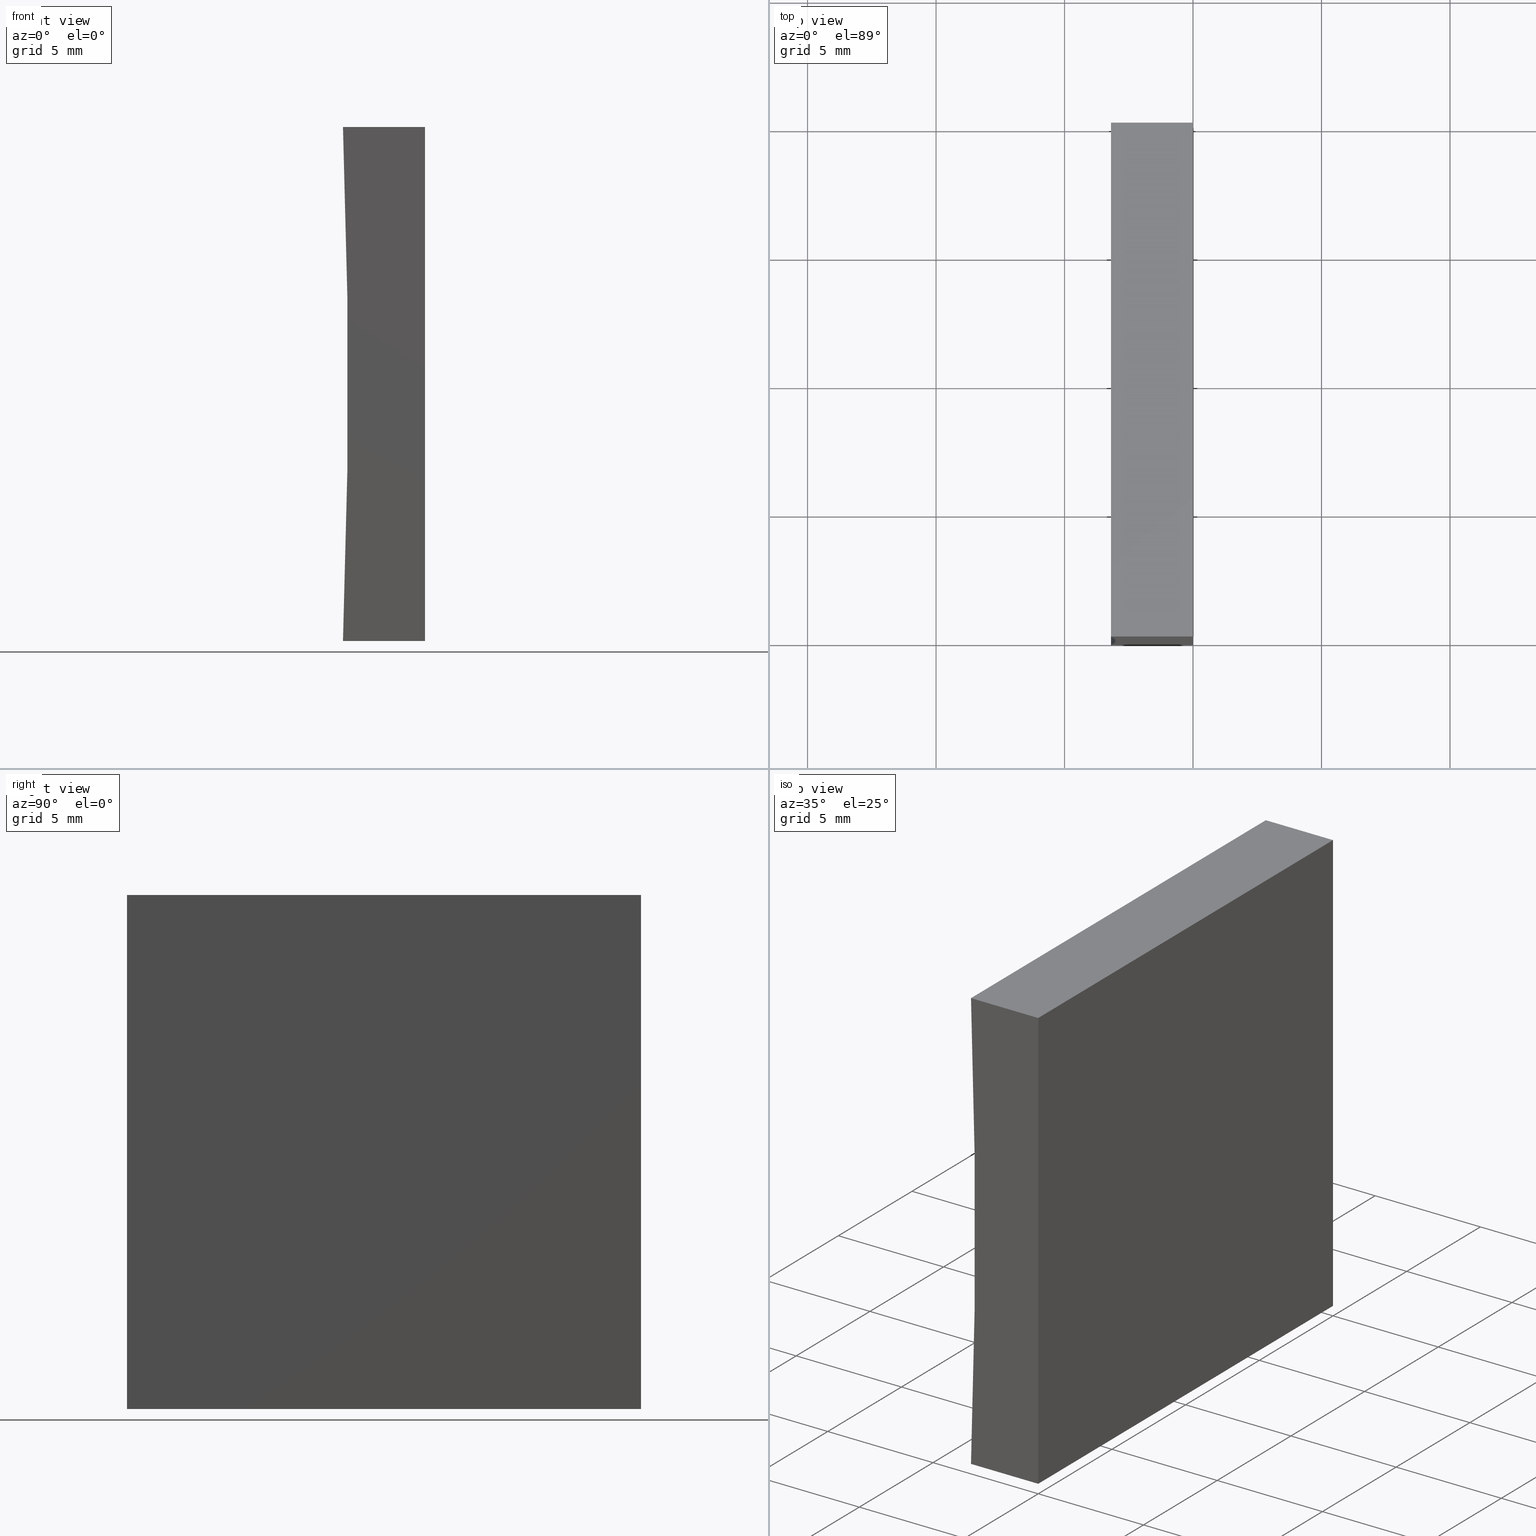
[diagram: canonical four-view strip — front | top / right | iso, engineering-drawing reading convention]
A machine part, canonical four-view strip (front | top / right | iso — engineering-drawing reading convention). The complete STEP part file that produces these views, byte-faithful:
ISO-10303-21;
HEADER;
FILE_DESCRIPTION (( 'STEP AP214' ),
    '1' );
FILE_NAME ('155352.STEP',
    '2019-06-28T06:16:52',
    ( 'user' ),
    ( '΢���й�' ),
    'SwSTEP 2.0',
    'SolidWorks 2016',
    '' );
FILE_SCHEMA (( 'AUTOMOTIVE_DESIGN' ));
ENDSEC;

DATA;
#1 = FACE_OUTER_BOUND ( 'NONE', #127, .T. ) ;
#2 = COLOUR_RGB ( '',1.000000000000000000, 1.000000000000000000, 1.000000000000000000 ) ;
#3 =( GEOMETRIC_REPRESENTATION_CONTEXT ( 3 ) GLOBAL_UNCERTAINTY_ASSIGNED_CONTEXT ( ( #125 ) ) GLOBAL_UNIT_ASSIGNED_CONTEXT ( ( #175, #30, #130 ) ) REPRESENTATION_CONTEXT ( 'NONE', 'WORKASPACE' ) );
#4 = APPLICATION_PROTOCOL_DEFINITION ( 'draft international standard', 'automotive_design', 1998, #120 ) ;
#5 = CARTESIAN_POINT ( 'NONE',  ( 0.0000000000000000000, 0.0000000000000000000, 0.0000000000000000000 ) ) ;
#6 = SURFACE_STYLE_USAGE ( .BOTH. , #194 ) ;
#7 = CARTESIAN_POINT ( 'NONE',  ( -261.5000000000000000, 20.00000000000000000, 10.00000000000003200 ) ) ;
#8 = DIRECTION ( 'NONE',  ( 0.0000000000000000000, -0.0000000000000000000, 1.000000000000000000 ) ) ;
#9 = DIRECTION ( 'NONE',  ( -6.123233995736766000E-017, -0.0000000000000000000, -1.000000000000000000 ) ) ;
#10 = CARTESIAN_POINT ( 'NONE',  ( -3.193496016844377100, 20.00000000000000000, -2.081668171172168500E-014 ) ) ;
#11 = DIRECTION ( 'NONE',  ( -1.086410295692777000E-015, 0.0000000000000000000, 1.000000000000000000 ) ) ;
#12 = DIRECTION ( 'NONE',  ( 0.0000000000000000000, 0.0000000000000000000, 1.000000000000000000 ) ) ;
#13 = APPLICATION_CONTEXT ( 'automotive_design' ) ;
#14 = FILL_AREA_STYLE_COLOUR ( '', #151 ) ;
#15 = EDGE_LOOP ( 'NONE', ( #170, #60, #119, #82 ) ) ;
#16 = VECTOR ( 'NONE', #126, 1000.000000000000000 ) ;
#17 = CIRCLE ( 'NONE', #24, 258.5000000000000000 ) ;
#18 = ORIENTED_EDGE ( 'NONE', *, *, #147, .F. ) ;
#19 =( NAMED_UNIT ( * ) PLANE_ANGLE_UNIT ( ) SI_UNIT ( $, .RADIAN. ) );
#20 = ORIENTED_EDGE ( 'NONE', *, *, #45, .T. ) ;
#21 = DIRECTION ( 'NONE',  ( 1.000000000000000000, 0.0000000000000000000, 0.0000000000000000000 ) ) ;
#22 = FILL_AREA_STYLE_COLOUR ( '', #2 ) ;
#23 = VERTEX_POINT ( 'NONE', #76 ) ;
#24 = AXIS2_PLACEMENT_3D ( 'NONE', #7, #142, #65 ) ;
#25 = DIRECTION ( 'NONE',  ( 0.0000000000000000000, 1.000000000000000000, 0.0000000000000000000 ) ) ;
#26 = STYLED_ITEM ( 'NONE', ( #32 ), #138 ) ;
#27 = ORIENTED_EDGE ( 'NONE', *, *, #147, .T. ) ;
#28 = AXIS2_PLACEMENT_3D ( 'NONE', #153, #43, #188 ) ;
#29 = CARTESIAN_POINT ( 'NONE',  ( -3.193496016844377100, 0.0000000000000000000, -2.081668171172168500E-014 ) ) ;
#30 =( NAMED_UNIT ( * ) PLANE_ANGLE_UNIT ( ) SI_UNIT ( $, .RADIAN. ) );
#31 = AXIS2_PLACEMENT_3D ( 'NONE', #38, #96, #72 ) ;
#32 = PRESENTATION_STYLE_ASSIGNMENT (( #48 ) ) ;
#33 = EDGE_LOOP ( 'NONE', ( #99, #36, #83, #108 ) ) ;
#34 = VECTOR ( 'NONE', #164, 1000.000000000000000 ) ;
#35 = ADVANCED_BREP_SHAPE_REPRESENTATION ( '155352', ( #138, #201 ), #3 ) ;
#36 = ORIENTED_EDGE ( 'NONE', *, *, #180, .F. ) ;
#37 = AXIS2_PLACEMENT_3D ( 'NONE', #103, #11, #187 ) ;
#38 = CARTESIAN_POINT ( 'NONE',  ( -261.5000000000000000, 20.00000000000000000, 10.00000000000003200 ) ) ;
#39 = PLANE ( 'NONE',  #93 ) ;
#40 = FACE_OUTER_BOUND ( 'NONE', #192, .T. ) ;
#41 = ORIENTED_EDGE ( 'NONE', *, *, #69, .T. ) ;
#42 = DIRECTION ( 'NONE',  ( -0.0000000000000000000, -1.000000000000000000, -0.0000000000000000000 ) ) ;
#43 = DIRECTION ( 'NONE',  ( -1.000000000000000000, 0.0000000000000000000, 6.123233995736766000E-017 ) ) ;
#44 = EDGE_CURVE ( 'NONE', #137, #67, #81, .T. ) ;
#45 = EDGE_CURVE ( 'NONE', #88, #47, #177, .T. ) ;
#46 = PLANE ( 'NONE',  #68 ) ;
#47 = VERTEX_POINT ( 'NONE', #70 ) ;
#48 = SURFACE_STYLE_USAGE ( .BOTH. , #64 ) ;
#49 = CARTESIAN_POINT ( 'NONE',  ( 0.0000000000000000000, 20.00000000000000000, 0.0000000000000000000 ) ) ;
#50 = VECTOR ( 'NONE', #154, 1000.000000000000000 ) ;
#51 = CYLINDRICAL_SURFACE ( 'NONE', #31, 258.5000000000000000 ) ;
#52 = EDGE_CURVE ( 'NONE', #150, #88, #17, .T. ) ;
#53 = ADVANCED_FACE ( 'NONE', ( #146 ), #143, .F. ) ;
#54 = CLOSED_SHELL ( 'NONE', ( #53, #190, #145, #124, #166, #84 ) ) ;
#55 = LINE ( 'NONE', #49, #113 ) ;
#56 = ORIENTED_EDGE ( 'NONE', *, *, #44, .F. ) ;
#57 =( NAMED_UNIT ( * ) SI_UNIT ( $, .STERADIAN. ) SOLID_ANGLE_UNIT ( ) );
#58 =( LENGTH_UNIT ( ) NAMED_UNIT ( * ) SI_UNIT ( .MILLI., .METRE. ) );
#59 = UNCERTAINTY_MEASURE_WITH_UNIT (LENGTH_MEASURE( 1.000000000000000100E-005 ), #171, 'distance_accuracy_value', 'NONE');
#60 = ORIENTED_EDGE ( 'NONE', *, *, #45, .F. ) ;
#61 = CARTESIAN_POINT ( 'NONE',  ( -3.193496016844382900, 20.00000000000000000, 20.00000000000000400 ) ) ;
#62 = DIRECTION ( 'NONE',  ( 1.000000000000000000, -0.0000000000000000000, -1.086410295692777400E-015 ) ) ;
#63 = FILL_AREA_STYLE ('',( #14 ) ) ;
#64 = SURFACE_SIDE_STYLE ('',( #89 ) ) ;
#65 = DIRECTION ( 'NONE',  ( 0.0000000000000000000, 0.0000000000000000000, 1.000000000000000000 ) ) ;
#66 = CARTESIAN_POINT ( 'NONE',  ( 1.224646799147353300E-015, 20.00000000000000000, 20.00000000000000000 ) ) ;
#67 = VERTEX_POINT ( 'NONE', #29 ) ;
#68 = AXIS2_PLACEMENT_3D ( 'NONE', #111, #25, #168 ) ;
#69 = EDGE_CURVE ( 'NONE', #167, #150, #123, .T. ) ;
#70 = CARTESIAN_POINT ( 'NONE',  ( -3.193496016844382900, 0.0000000000000000000, 20.00000000000000400 ) ) ;
#71 = ORIENTED_EDGE ( 'NONE', *, *, #80, .T. ) ;
#72 = DIRECTION ( 'NONE',  ( 0.0000000000000000000, 0.0000000000000000000, -1.000000000000000000 ) ) ;
#73 = LINE ( 'NONE', #87, #106 ) ;
#74 = PRODUCT_CONTEXT ( 'NONE', #120, 'mechanical' ) ;
#75 = PRESENTATION_LAYER_ASSIGNMENT (  '', '', ( #26 ) ) ;
#76 = CARTESIAN_POINT ( 'NONE',  ( 1.224646799147353300E-015, 20.00000000000000000, 20.00000000000000000 ) ) ;
#77 = ORIENTED_EDGE ( 'NONE', *, *, #136, .F. ) ;
#78 = CARTESIAN_POINT ( 'NONE',  ( 1.224646799147353300E-015, 0.0000000000000000000, 20.00000000000000000 ) ) ;
#79 = PRESENTATION_LAYER_ASSIGNMENT (  '', '', ( #109 ) ) ;
#80 = EDGE_CURVE ( 'NONE', #23, #186, #73, .T. ) ;
#81 = LINE ( 'NONE', #5, #112 ) ;
#82 = ORIENTED_EDGE ( 'NONE', *, *, #180, .T. ) ;
#83 = ORIENTED_EDGE ( 'NONE', *, *, #69, .F. ) ;
#84 = ADVANCED_FACE ( 'NONE', ( #1 ), #86, .F. ) ;
#85 = DIRECTION ( 'NONE',  ( -0.0000000000000000000, -1.000000000000000000, -0.0000000000000000000 ) ) ;
#86 = PLANE ( 'NONE',  #158 ) ;
#87 = CARTESIAN_POINT ( 'NONE',  ( 1.224646799147353300E-015, 20.00000000000000000, 20.00000000000000000 ) ) ;
#88 = VERTEX_POINT ( 'NONE', #179 ) ;
#89 = SURFACE_STYLE_FILL_AREA ( #63 ) ;
#90 = CIRCLE ( 'NONE', #105, 258.5000000000000000 ) ;
#91 =( NAMED_UNIT ( * ) PLANE_ANGLE_UNIT ( ) SI_UNIT ( $, .RADIAN. ) );
#92 = SURFACE_STYLE_FILL_AREA ( #174 ) ;
#93 = AXIS2_PLACEMENT_3D ( 'NONE', #118, #139, #135 ) ;
#94 = PRODUCT_DEFINITION_SHAPE ( 'NONE', 'NONE',  #159 ) ;
#95 = CARTESIAN_POINT ( 'NONE',  ( 0.0000000000000000000, 20.00000000000000000, 0.0000000000000000000 ) ) ;
#96 = DIRECTION ( 'NONE',  ( -0.0000000000000000000, -1.000000000000000000, -0.0000000000000000000 ) ) ;
#97 = LINE ( 'NONE', #196, #16 ) ;
#98 = DIRECTION ( 'NONE',  ( 0.0000000000000000000, 1.000000000000000000, 0.0000000000000000000 ) ) ;
#99 = ORIENTED_EDGE ( 'NONE', *, *, #44, .T. ) ;
#100 = DIRECTION ( 'NONE',  ( -0.0000000000000000000, -1.000000000000000000, -0.0000000000000000000 ) ) ;
#101 = VECTOR ( 'NONE', #181, 1000.000000000000000 ) ;
#102 = EDGE_LOOP ( 'NONE', ( #148, #128, #18, #20 ) ) ;
#103 = CARTESIAN_POINT ( 'NONE',  ( 0.0000000000000000000, 20.00000000000000000, 0.0000000000000000000 ) ) ;
#104 = ORIENTED_EDGE ( 'NONE', *, *, #204, .T. ) ;
#105 = AXIS2_PLACEMENT_3D ( 'NONE', #200, #85, #12 ) ;
#106 = VECTOR ( 'NONE', #42, 1000.000000000000000 ) ;
#107 = VECTOR ( 'NONE', #62, 1000.000000000000000 ) ;
#108 = ORIENTED_EDGE ( 'NONE', *, *, #136, .T. ) ;
#109 = STYLED_ITEM ( 'NONE', ( #165 ), #35 ) ;
#110 = UNCERTAINTY_MEASURE_WITH_UNIT (LENGTH_MEASURE( 1.000000000000000100E-005 ), #58, 'distance_accuracy_value', 'NONE');
#111 = CARTESIAN_POINT ( 'NONE',  ( -261.5000000000000000, 20.00000000000000000, 10.00000000000003200 ) ) ;
#112 = VECTOR ( 'NONE', #132, 1000.000000000000000 ) ;
#113 = VECTOR ( 'NONE', #9, 1000.000000000000000 ) ;
#114 = ORIENTED_EDGE ( 'NONE', *, *, #163, .F. ) ;
#115 = CARTESIAN_POINT ( 'NONE',  ( -261.5000000000000000, 0.0000000000000000000, 10.00000000000003200 ) ) ;
#116 = DIRECTION ( 'NONE',  ( 0.0000000000000000000, 0.0000000000000000000, 1.000000000000000000 ) ) ;
#117 = LINE ( 'NONE', #160, #34 ) ;
#118 = CARTESIAN_POINT ( 'NONE',  ( 1.224646799147353300E-015, 20.00000000000000000, 20.00000000000000000 ) ) ;
#119 = ORIENTED_EDGE ( 'NONE', *, *, #52, .F. ) ;
#120 = APPLICATION_CONTEXT ( 'automotive_design' ) ;
#121 = FACE_OUTER_BOUND ( 'NONE', #15, .T. ) ;
#122 = ORIENTED_EDGE ( 'NONE', *, *, #129, .F. ) ;
#123 = LINE ( 'NONE', #95, #101 ) ;
#124 = ADVANCED_FACE ( 'NONE', ( #40 ), #162, .F. ) ;
#125 = UNCERTAINTY_MEASURE_WITH_UNIT (LENGTH_MEASURE( 1.000000000000000100E-005 ), #175, 'distance_accuracy_value', 'NONE');
#126 = DIRECTION ( 'NONE',  ( -0.0000000000000000000, -1.000000000000000000, -0.0000000000000000000 ) ) ;
#127 = EDGE_LOOP ( 'NONE', ( #56, #122, #114, #141 ) ) ;
#128 = ORIENTED_EDGE ( 'NONE', *, *, #80, .F. ) ;
#129 = EDGE_CURVE ( 'NONE', #186, #137, #117, .T. ) ;
#130 =( NAMED_UNIT ( * ) SI_UNIT ( $, .STERADIAN. ) SOLID_ANGLE_UNIT ( ) );
#131 = APPLICATION_PROTOCOL_DEFINITION ( 'draft international standard', 'automotive_design', 1998, #13 ) ;
#132 = DIRECTION ( 'NONE',  ( -1.000000000000000000, 0.0000000000000000000, -1.086410295692777000E-015 ) ) ;
#133 = FACE_OUTER_BOUND ( 'NONE', #203, .T. ) ;
#134 = ORIENTED_EDGE ( 'NONE', *, *, #129, .T. ) ;
#135 = DIRECTION ( 'NONE',  ( -1.000000000000000000, 0.0000000000000000000, 1.086410295692777400E-015 ) ) ;
#136 = EDGE_CURVE ( 'NONE', #167, #137, #202, .T. ) ;
#137 = VERTEX_POINT ( 'NONE', #193 ) ;
#138 = MANIFOLD_SOLID_BREP ( '͹̨-����1', #54 ) ;
#139 = DIRECTION ( 'NONE',  ( -1.086410295692777400E-015, 0.0000000000000000000, -1.000000000000000000 ) ) ;
#140 = MECHANICAL_DESIGN_GEOMETRIC_PRESENTATION_REPRESENTATION (  '', ( #109 ), #184 ) ;
#141 = ORIENTED_EDGE ( 'NONE', *, *, #149, .F. ) ;
#142 = DIRECTION ( 'NONE',  ( -0.0000000000000000000, -1.000000000000000000, -0.0000000000000000000 ) ) ;
#143 = PLANE ( 'NONE',  #37 ) ;
#144 = FACE_OUTER_BOUND ( 'NONE', #102, .T. ) ;
#145 = ADVANCED_FACE ( 'NONE', ( #144 ), #39, .F. ) ;
#146 = FACE_OUTER_BOUND ( 'NONE', #33, .T. ) ;
#147 = EDGE_CURVE ( 'NONE', #88, #23, #169, .T. ) ;
#148 = ORIENTED_EDGE ( 'NONE', *, *, #163, .T. ) ;
#149 = EDGE_CURVE ( 'NONE', #67, #47, #90, .T. ) ;
#150 = VERTEX_POINT ( 'NONE', #10 ) ;
#151 = COLOUR_RGB ( '',1.000000000000000000, 1.000000000000000000, 1.000000000000000000 ) ;
#152 = ORIENTED_EDGE ( 'NONE', *, *, #204, .F. ) ;
#153 = CARTESIAN_POINT ( 'NONE',  ( 0.0000000000000000000, 20.00000000000000000, 0.0000000000000000000 ) ) ;
#154 = DIRECTION ( 'NONE',  ( -0.0000000000000000000, -1.000000000000000000, -0.0000000000000000000 ) ) ;
#155 =( GEOMETRIC_REPRESENTATION_CONTEXT ( 3 ) GLOBAL_UNCERTAINTY_ASSIGNED_CONTEXT ( ( #110 ) ) GLOBAL_UNIT_ASSIGNED_CONTEXT ( ( #58, #91, #173 ) ) REPRESENTATION_CONTEXT ( 'NONE', 'WORKASPACE' ) );
#156 = CARTESIAN_POINT ( 'NONE',  ( 0.0000000000000000000, 0.0000000000000000000, 0.0000000000000000000 ) ) ;
#157 = CARTESIAN_POINT ( 'NONE',  ( 0.0000000000000000000, 20.00000000000000000, 0.0000000000000000000 ) ) ;
#158 = AXIS2_PLACEMENT_3D ( 'NONE', #115, #98, #8 ) ;
#159 = PRODUCT_DEFINITION ( 'δ֪', '', #198, #176 ) ;
#160 = CARTESIAN_POINT ( 'NONE',  ( 0.0000000000000000000, 0.0000000000000000000, 0.0000000000000000000 ) ) ;
#161 = CARTESIAN_POINT ( 'NONE',  ( 0.0000000000000000000, 20.00000000000000000, 0.0000000000000000000 ) ) ;
#162 = PLANE ( 'NONE',  #28 ) ;
#163 = EDGE_CURVE ( 'NONE', #47, #186, #172, .T. ) ;
#164 = DIRECTION ( 'NONE',  ( -6.123233995736766000E-017, -0.0000000000000000000, -1.000000000000000000 ) ) ;
#165 = PRESENTATION_STYLE_ASSIGNMENT (( #6 ) ) ;
#166 = ADVANCED_FACE ( 'NONE', ( #133 ), #46, .T. ) ;
#167 = VERTEX_POINT ( 'NONE', #157 ) ;
#168 = DIRECTION ( 'NONE',  ( 0.0000000000000000000, -0.0000000000000000000, 1.000000000000000000 ) ) ;
#169 = LINE ( 'NONE', #66, #183 ) ;
#170 = ORIENTED_EDGE ( 'NONE', *, *, #149, .T. ) ;
#171 =( LENGTH_UNIT ( ) NAMED_UNIT ( * ) SI_UNIT ( .MILLI., .METRE. ) );
#172 = LINE ( 'NONE', #78, #107 ) ;
#173 =( NAMED_UNIT ( * ) SI_UNIT ( $, .STERADIAN. ) SOLID_ANGLE_UNIT ( ) );
#174 = FILL_AREA_STYLE ('',( #22 ) ) ;
#175 =( LENGTH_UNIT ( ) NAMED_UNIT ( * ) SI_UNIT ( .MILLI., .METRE. ) );
#176 = PRODUCT_DEFINITION_CONTEXT ( 'detailed design', #13, 'design' ) ;
#177 = LINE ( 'NONE', #61, #182 ) ;
#178 = MECHANICAL_DESIGN_GEOMETRIC_PRESENTATION_REPRESENTATION (  '', ( #26 ), #155 ) ;
#179 = CARTESIAN_POINT ( 'NONE',  ( -3.193496016844382900, 20.00000000000000000, 20.00000000000000400 ) ) ;
#180 = EDGE_CURVE ( 'NONE', #150, #67, #97, .T. ) ;
#181 = DIRECTION ( 'NONE',  ( -1.000000000000000000, 0.0000000000000000000, -1.086410295692777000E-015 ) ) ;
#182 = VECTOR ( 'NONE', #100, 1000.000000000000000 ) ;
#183 = VECTOR ( 'NONE', #197, 1000.000000000000000 ) ;
#184 =( GEOMETRIC_REPRESENTATION_CONTEXT ( 3 ) GLOBAL_UNCERTAINTY_ASSIGNED_CONTEXT ( ( #59 ) ) GLOBAL_UNIT_ASSIGNED_CONTEXT ( ( #171, #19, #57 ) ) REPRESENTATION_CONTEXT ( 'NONE', 'WORKASPACE' ) );
#185 = PRODUCT_RELATED_PRODUCT_CATEGORY ( 'part', '', ( #189 ) ) ;
#186 = VERTEX_POINT ( 'NONE', #191 ) ;
#187 = DIRECTION ( 'NONE',  ( 1.000000000000000000, 0.0000000000000000000, 1.086410295692777000E-015 ) ) ;
#188 = DIRECTION ( 'NONE',  ( 6.123233995736766000E-017, 0.0000000000000000000, 1.000000000000000000 ) ) ;
#189 = PRODUCT ( '155352', '155352', '', ( #74 ) ) ;
#190 = ADVANCED_FACE ( 'NONE', ( #121 ), #51, .F. ) ;
#191 = CARTESIAN_POINT ( 'NONE',  ( 1.224646799147353300E-015, 0.0000000000000000000, 20.00000000000000000 ) ) ;
#192 = EDGE_LOOP ( 'NONE', ( #134, #77, #152, #71 ) ) ;
#193 = CARTESIAN_POINT ( 'NONE',  ( 0.0000000000000000000, 0.0000000000000000000, 0.0000000000000000000 ) ) ;
#194 = SURFACE_SIDE_STYLE ('',( #92 ) ) ;
#195 = ORIENTED_EDGE ( 'NONE', *, *, #52, .T. ) ;
#196 = CARTESIAN_POINT ( 'NONE',  ( -3.193496016844377100, 20.00000000000000000, -2.081668171172168500E-014 ) ) ;
#197 = DIRECTION ( 'NONE',  ( 1.000000000000000000, -0.0000000000000000000, -1.086410295692777400E-015 ) ) ;
#198 = PRODUCT_DEFINITION_FORMATION_WITH_SPECIFIED_SOURCE ( '�κ�', '', #189, .NOT_KNOWN. ) ;
#199 = SHAPE_DEFINITION_REPRESENTATION ( #94, #35 ) ;
#200 = CARTESIAN_POINT ( 'NONE',  ( -261.5000000000000000, 0.0000000000000000000, 10.00000000000003200 ) ) ;
#201 = AXIS2_PLACEMENT_3D ( 'NONE', #156, #116, #21 ) ;
#202 = LINE ( 'NONE', #161, #50 ) ;
#203 = EDGE_LOOP ( 'NONE', ( #41, #195, #27, #104 ) ) ;
#204 = EDGE_CURVE ( 'NONE', #23, #167, #55, .T. ) ;
ENDSEC;
END-ISO-10303-21;
